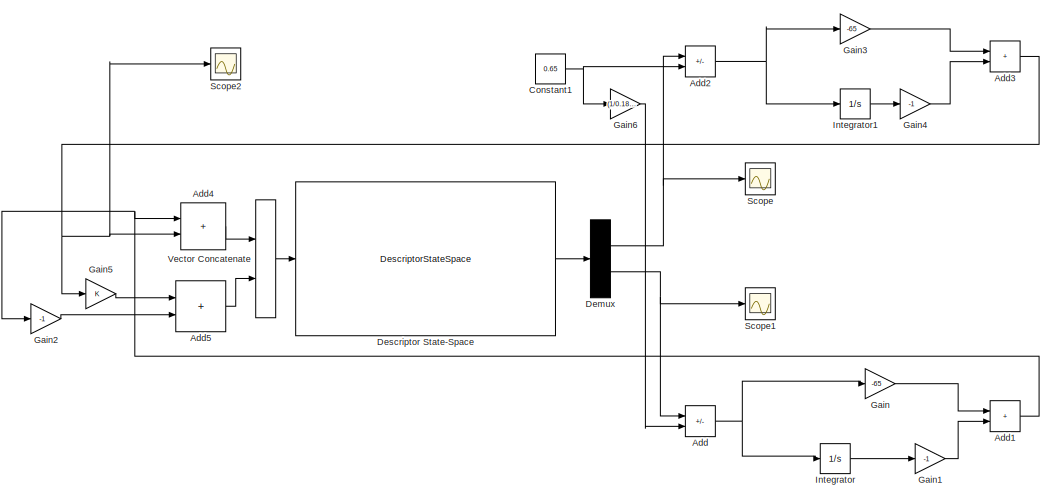
[diagram: root canvas - part 1/2, left side, full height]
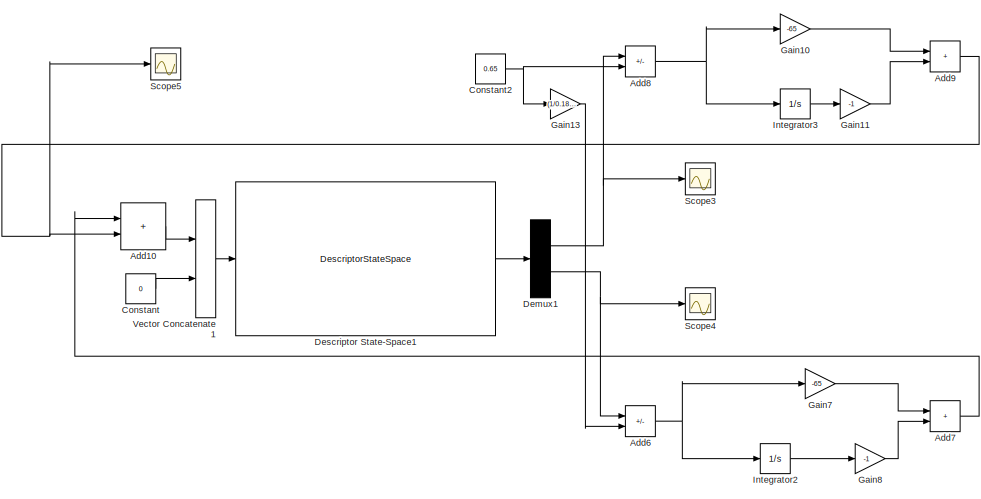
[diagram: root canvas - part 2/2, right side, full height]
MODEL slx_dd453b0550fe
KIND model
CONFIG AbsTol = auto
CONFIG EnableMultiTasking = off
CONFIG FixedStep = auto
CONFIG MaxStep = auto
CONFIG MinStep = auto
CONFIG RelTol = 1e-3
CONFIG SampleTimeConstraint = Unconstrained
CONFIG SolverName = VariableStepAuto
CONFIG StartTime = 0.0
CONFIG StopTime = 10
BLOCK [Sum] Add
  IconShape = rectangular
  Inputs = +-
  Ports = [2, 1]
BLOCK [Sum] Add1
  IconShape = rectangular
  Ports = [2, 1]
BLOCK [Sum] Add10
  IconShape = rectangular
  Ports = [2, 1]
BLOCK [Sum] Add2
  IconShape = rectangular
  Inputs = +-
  Ports = [2, 1]
BLOCK [Sum] Add3
  IconShape = rectangular
  Ports = [2, 1]
BLOCK [Sum] Add4
  IconShape = rectangular
  Ports = [2, 1]
BLOCK [Sum] Add5
  IconShape = rectangular
  Ports = [2, 1]
BLOCK [Sum] Add6
  IconShape = rectangular
  Inputs = +-
  Ports = [2, 1]
BLOCK [Sum] Add7
  IconShape = rectangular
  Ports = [2, 1]
BLOCK [Sum] Add8
  IconShape = rectangular
  Inputs = +-
  Ports = [2, 1]
BLOCK [Sum] Add9
  IconShape = rectangular
  Ports = [2, 1]
BLOCK [Constant] Constant
  Value = 0
BLOCK [Constant] Constant1
  Value = 0.65
BLOCK [Constant] Constant2
  Value = 0.65
BLOCK [Demux] Demux
  Outputs = 2
  Ports = [1, 2]
BLOCK [Demux] Demux1
  Outputs = 2
  Ports = [1, 2]
BLOCK [DescriptorStateSpace] Descriptor State-Space
  A = [-2.2422 0;0 -2.1672]
  B = [.3382 .3382;1.2219 -1.2219]
  C = [1 0;0 1]
  D = [0 0;0 0]
  E = [1 0;0 1]
  InitialCondition = [0;0]
  Ports = [1, 1]
BLOCK [DescriptorStateSpace] Descriptor State-Space1
  A = [-2.2422 0;0 -2.1672]
  B = [.3382 .3382;1.2219 -1.2219]
  C = [1 0;0 1]
  D = [0 0;0 0]
  E = [1 0;0 1]
  InitialCondition = [0;0]
  Ports = [1, 1]
BLOCK [Gain] Gain
  Gain = -65
BLOCK [Gain] Gain1
  Gain = -1
BLOCK [Gain] Gain10
  Gain = -65
BLOCK [Gain] Gain11
  Gain = -1
BLOCK [Gain] Gain13
  Gain = (1/0.1876)
BLOCK [Gain] Gain2
  Gain = -1
BLOCK [Gain] Gain3
  Gain = -65
BLOCK [Gain] Gain4
  Gain = -1
BLOCK [Gain] Gain5
BLOCK [Gain] Gain6
  Gain = (1/0.1876)
BLOCK [Gain] Gain7
  Gain = -65
BLOCK [Gain] Gain8
  Gain = -1
BLOCK [Integrator] Integrator
  Ports = [1, 1]
BLOCK [Integrator] Integrator1
  Ports = [1, 1]
BLOCK [Integrator] Integrator2
  Ports = [1, 1]
BLOCK [Integrator] Integrator3
  Ports = [1, 1]
BLOCK [Scope] Scope
  Floating = off
  NumInputPorts = 1
  Ports = [1]
  ScopeSpecificationString = Simulink.scopes.TimeScopeBlockCfg('CurrentConfiguration', extmgr.ConfigurationSet(extmgr.Configuration('Core','General UI',true),extmgr.Configuration('Core','Source UI',true),extmgr.Configuration('Sources','WiredSimulink',true),extmgr.Configuration('Visuals','Time Domain',true,'SerializedDisplays',{struct('MinYLimReal','0.16023','MaxYLimReal','0.67614','YLabelReal','','MinYLimMag','0.16023','MaxYL...<+1400ch>
BLOCK [Scope] Scope1
  Floating = off
  NumInputPorts = 1
  Ports = [1]
  ScopeSpecificationString = Simulink.scopes.TimeScopeBlockCfg('CurrentConfiguration', extmgr.ConfigurationSet(extmgr.Configuration('Core','General UI',true),extmgr.Configuration('Core','Source UI',true),extmgr.Configuration('Sources','WiredSimulink',true,'DataLoggingVariableName','ScopeData1'),extmgr.Configuration('Visuals','Time Domain',true,'SerializedDisplays',{struct('MinYLimReal','-0.42813','MaxYLimReal','3.85315','YLab...<+1395ch>
BLOCK [Scope] Scope2
  Floating = off
  NumInputPorts = 1
  Ports = [1]
  ScopeSpecificationString = Simulink.scopes.TimeScopeBlockCfg('CurrentConfiguration', extmgr.ConfigurationSet(extmgr.Configuration('Core','General UI',true),extmgr.Configuration('Core','Source UI',true),extmgr.Configuration('Sources','WiredSimulink',true,'DataLoggingVariableName','ScopeData1'),extmgr.Configuration('Visuals','Time Domain',true,'SerializedDisplays',{struct('MinYLimReal','-2.97296','MaxYLimReal','47.27477','YLa...<+1396ch>
BLOCK [Scope] Scope3
  Floating = off
  NumInputPorts = 1
  Ports = [1]
  ScopeSpecificationString = Simulink.scopes.TimeScopeBlockCfg('CurrentConfiguration', extmgr.ConfigurationSet(extmgr.Configuration('Core','General UI',true),extmgr.Configuration('Core','Source UI',true),extmgr.Configuration('Sources','WiredSimulink',true,'DataLoggingVariableName','ScopeData2'),extmgr.Configuration('Visuals','Time Domain',true,'SerializedDisplays',{struct('MinYLimReal','-0.10874','MaxYLimReal','0.9787','YLabe...<+1463ch>
BLOCK [Scope] Scope4
  Floating = off
  NumInputPorts = 1
  Ports = [1]
  ScopeSpecificationString = Simulink.scopes.TimeScopeBlockCfg('CurrentConfiguration', extmgr.ConfigurationSet(extmgr.Configuration('Core','General UI',true),extmgr.Configuration('Core','Source UI',true),extmgr.Configuration('Sources','WiredSimulink',true,'DataLoggingVariableName','ScopeData3'),extmgr.Configuration('Visuals','Time Domain',true,'SerializedDisplays',{struct('MinYLimReal','-0.39849','MaxYLimReal','3.58637','YLab...<+1396ch>
BLOCK [Scope] Scope5
  Floating = off
  NumInputPorts = 1
  Ports = [1]
  ScopeSpecificationString = Simulink.scopes.TimeScopeBlockCfg('CurrentConfiguration', extmgr.ConfigurationSet(extmgr.Configuration('Core','General UI',true),extmgr.Configuration('Core','Source UI',true),extmgr.Configuration('Sources','WiredSimulink',true,'DataLoggingVariableName','ScopeData4'),extmgr.Configuration('Visuals','Time Domain',true,'SerializedDisplays',{struct('MinYLimReal','-22.3843','MaxYLimReal','49.43159','YLa...<+1421ch>
BLOCK [Concatenate] Vector Concatenate
  Ports = [2, 1]
BLOCK [Concatenate] Vector Concatenate1
  Ports = [2, 1]
LINE Add10:1 -> Vector Concatenate1:1
NET Add1:1 -> Add4:1, Gain2:1
NET Add2:1 -> Gain3:1, Integrator1:1
NET Add3:1 -> Add4:2, Gain5:1, Scope2:1
LINE Add4:1 -> Vector Concatenate:1
LINE Add5:1 -> Vector Concatenate:2
NET Add6:1 -> Gain7:1, Integrator2:1
LINE Add7:1 -> Add10:1
NET Add8:1 -> Gain10:1, Integrator3:1
NET Add9:1 -> Add10:2, Scope5:1
NET Add:1 -> Gain:1, Integrator:1
NET Constant1:1 -> Add2:2, Gain6:1
NET Constant2:1 -> Add8:2, Gain13:1
LINE Constant:1 -> Vector Concatenate1:2
NET Demux1:1 -> Add8:1, Scope3:1
NET Demux1:2 -> Add6:1, Scope4:1
NET Demux:1 -> Add2:1, Scope:1
NET Demux:2 -> Add:1, Scope1:1
LINE Descriptor State-Space1:1 -> Demux1:1
LINE Descriptor State-Space:1 -> Demux:1
LINE Gain10:1 -> Add9:1
LINE Gain11:1 -> Add9:2
LINE Gain13:1 -> Add6:2
LINE Gain1:1 -> Add1:2
LINE Gain2:1 -> Add5:2
LINE Gain3:1 -> Add3:1
LINE Gain4:1 -> Add3:2
LINE Gain5:1 -> Add5:1
LINE Gain6:1 -> Add:2
LINE Gain7:1 -> Add7:1
LINE Gain8:1 -> Add7:2
LINE Gain:1 -> Add1:1
LINE Integrator1:1 -> Gain4:1
LINE Integrator2:1 -> Gain8:1
LINE Integrator3:1 -> Gain11:1
LINE Integrator:1 -> Gain1:1
LINE Vector Concatenate1:1 -> Descriptor State-Space1:1
LINE Vector Concatenate:1 -> Descriptor State-Space:1
note: NET lines group one-source signal fan-out (src -> all destinations, sorted); 1:1 wires keep LINE
